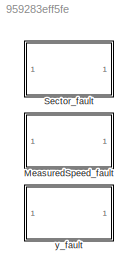
MODEL slx_959283eff5fe
KIND model
CONFIG AbsTol = auto
CONFIG EnableMultiTasking = on
CONFIG FixedStep = auto
CONFIG MaxStep = auto
CONFIG MinStep = auto
CONFIG RelTol = 1e-3
CONFIG SampleTimeConstraint = Unconstrained
CONFIG SolverName = VariableStepAuto
CONFIG StartTime = 0.0
CONFIG StopTime = 10.0
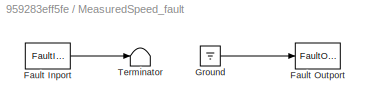
BLOCK [SubSystem] MeasuredSpeed_fault
  IsInjectorSS = on
  LibrarySourceBlock = mwfaultlib/Stuck-at-Ground
  TreatAsAtomicUnit = on
BLOCK [FaultInport] MeasuredSpeed_fault/Fault Inport
BLOCK [FaultOutport] MeasuredSpeed_fault/Fault Outport
BLOCK [Ground] MeasuredSpeed_fault/Ground
BLOCK [Terminator] MeasuredSpeed_fault/Terminator
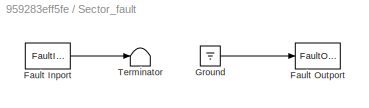
BLOCK [SubSystem] Sector_fault
  IsInjectorSS = on
  LibrarySourceBlock = mwfaultlib/Stuck-at-Ground
  TreatAsAtomicUnit = on
BLOCK [FaultInport] Sector_fault/Fault Inport
BLOCK [FaultOutport] Sector_fault/Fault Outport
BLOCK [Ground] Sector_fault/Ground
BLOCK [Terminator] Sector_fault/Terminator
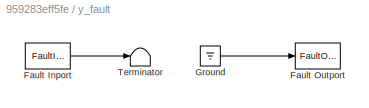
BLOCK [SubSystem] y_fault
  IsInjectorSS = on
  LibrarySourceBlock = mwfaultlib/Stuck-at-Ground
  TreatAsAtomicUnit = on
BLOCK [FaultInport] y_fault/Fault Inport
BLOCK [FaultOutport] y_fault/Fault Outport
BLOCK [Ground] y_fault/Ground
BLOCK [Terminator] y_fault/Terminator
LINE MeasuredSpeed_fault/Fault Inport:1 -> MeasuredSpeed_fault/Terminator:1
LINE MeasuredSpeed_fault/Ground:1 -> MeasuredSpeed_fault/Fault Outport:1
LINE Sector_fault/Fault Inport:1 -> Sector_fault/Terminator:1
LINE Sector_fault/Ground:1 -> Sector_fault/Fault Outport:1
LINE y_fault/Fault Inport:1 -> y_fault/Terminator:1
LINE y_fault/Ground:1 -> y_fault/Fault Outport:1
